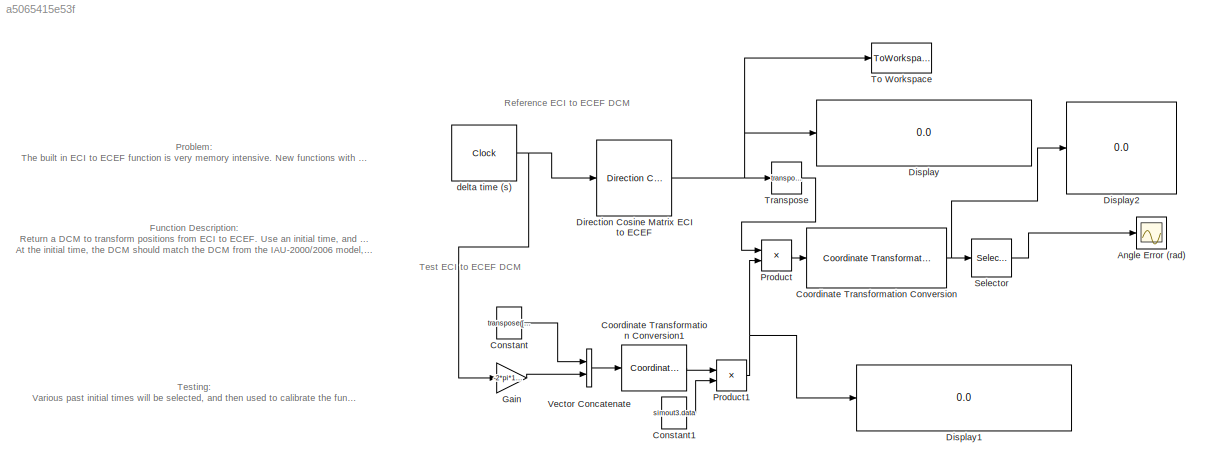
MODEL slx_a5065415e53f
KIND model
CONFIG AbsTol = auto
CONFIG EnableMultiTasking = off
CONFIG FixedStep = 10000
CONFIG MaxStep = auto
CONFIG MinStep = auto
CONFIG RelTol = 1e-3
CONFIG SampleTimeConstraint = Unconstrained
CONFIG Solver = FixedStepAuto
CONFIG SolverName = FixedStepAuto
CONFIG StartTime = 0
CONFIG StopTime = 100000000
BLOCK [Scope] Angle Error (rad)
  Floating = off
  NumInputPorts = 1
  Ports = [1]
  ScopeSpecificationString = Simulink.scopes.TimeScopeBlockCfg('CurrentConfiguration', extmgr.ConfigurationSet(extmgr.Configuration('Core','General UI',true),extmgr.Configuration('Core','Source UI',true),extmgr.Configuration('Sources','WiredSimulink',true),extmgr.Configuration('Visuals','Time Domain',true,'SerializedDisplays',{struct('MinYLimReal','-0.00004','MaxYLimReal','0.00034','YLabelReal','','MinYLimMag','0.00000','MaxY...<+1357ch>
BLOCK [Constant] Constant
  Value = transpose([0, 0, 1])
BLOCK [Constant] Constant1
  Value = simout3.data
BLOCK [Reference] Coordinate Transformation Conversion  REF=robotcorelib/Coordinate Transformation Conversion
  Ports = [1, 1]
  SourceBlock = robotcorelib/Coordinate Transformation Conversion
  SourceProductBaseCode = RO
  SourceProductName = Robotics System Toolbox
  SourceType = robotics.slcore.internal.block.CoordinateTransformationConversion
BLOCK [Reference] Coordinate Transformation Conversion1  REF=robotcorelib/Coordinate Transformation Conversion
  Ports = [1, 1]
  SourceBlock = robotcorelib/Coordinate Transformation Conversion
  SourceProductBaseCode = RO
  SourceProductName = Robotics System Toolbox
  SourceType = robotics.slcore.internal.block.CoordinateTransformationConversion
BLOCK [Reference] Direction Cosine Matrix ECI to ECEF  REF=aerolibtransform2/Direction Cosine Matrix
ECI to ECEF
  AttributesFormatString = %<red>
  Ports = [1, 1]
  SourceBlock = aerolibtransform2/Direction Cosine Matrix\nECI to ECEF
  SourceProductBaseCode = AE
  SourceProductName = Aerospace Blockset
  SourceType = DCMECItoECEF
BLOCK [Display] Display
  Decimation = 1
  Ports = [1]
BLOCK [Display] Display1
  Decimation = 1
  Ports = [1]
BLOCK [Display] Display2
  Decimation = 1
  Ports = [1]
BLOCK [Gain] Gain
  Gain = -2*pi*1.00273781191135448/24/3600
  OutDataTypeStr = Inherit: Inherit via internal rule
  ParamDataTypeStr = Inherit: Inherit via internal rule
  SaturateOnIntegerOverflow = off
BLOCK [Product] Product
  InputSameDT = off
  Multiplication = Matrix(*)
  OutDataTypeStr = Inherit: Inherit via internal rule
  Ports = [2, 1]
  RndMeth = Floor
  SaturateOnIntegerOverflow = off
BLOCK [Product] Product1
  InputSameDT = off
  Multiplication = Matrix(*)
  OutDataTypeStr = Inherit: Inherit via internal rule
  Ports = [2, 1]
  RndMeth = Floor
  SaturateOnIntegerOverflow = off
BLOCK [Selector] Selector
  IndexOptions = Index vector (dialog)
  Indices = [4]
  InputPortWidth = 4
  OutputSizes = 1
  Ports = [1, 1]
BLOCK [ToWorkspace] To Workspace
  FixptAsFi = on
  MaxDataPoints = inf
  Ports = [1]
  SampleTime = -1
  Save2DSignal = 3-D array (concatenate along third dimension)
  SaveFormat = Timeseries
  VariableName = simout3
BLOCK [Math] Transpose
  Operator = transpose
  Ports = [1, 1]
BLOCK [Concatenate] Vector Concatenate
  Ports = [2, 1]
BLOCK [Clock] delta time (s)
  DisplayTime = on
ANNOTATION (root): Function Description: Return a DCM to transform positions from ECI to ECEF. Use an initial time, and a delta time(s). the delta time is based on change in TAI or GPS time, not UTC or UT1. At the initial time, the DCM should match the DCM from the IAU-2000/2006 model, but it is expected that the DCMs should slowly drift. This drift must be small enough so that in a few year from initial time, if th...<+87ch>
ANNOTATION (root): Problem: The built in ECI to ECEF function is very memory intensive. New functions with the same role need to be tested to ensure accuracy and memory
ANNOTATION (root): Testing: Various past initial times will be selected, and then used to calibrate the function. Then the difference between the DCMs will be measured. The difference in DCMs can be converted into a angle axis error rotation. This angle in radians multiplied by the distance from the spacecraft to the center of earth will give the maximum offset in distance that the transform added.
ANNOTATION (root): Reference ECI to ECEF DCM
ANNOTATION (root): Test ECI to ECEF DCM
LINE Constant1:1 -> Product1:2
LINE Constant:1 -> Vector Concatenate:1
LINE Coordinate Transformation Conversion1:1 -> Product1:1
NET Coordinate Transformation Conversion:1 -> Display2:1, Selector:1
NET Direction Cosine Matrix ECI to ECEF:1 -> Display:1, To Workspace:1, Transpose:1
LINE Gain:1 -> Vector Concatenate:2
NET Product1:1 -> Display1:1, Product:2
LINE Product:1 -> Coordinate Transformation Conversion:1
LINE Selector:1 -> Angle Error (rad):1
LINE Transpose:1 -> Product:1
LINE Vector Concatenate:1 -> Coordinate Transformation Conversion1:1
NET delta time (s):1 -> Direction Cosine Matrix ECI to ECEF:1, Gain:1
note: NET lines group one-source signal fan-out (src -> all destinations, sorted); 1:1 wires keep LINE
